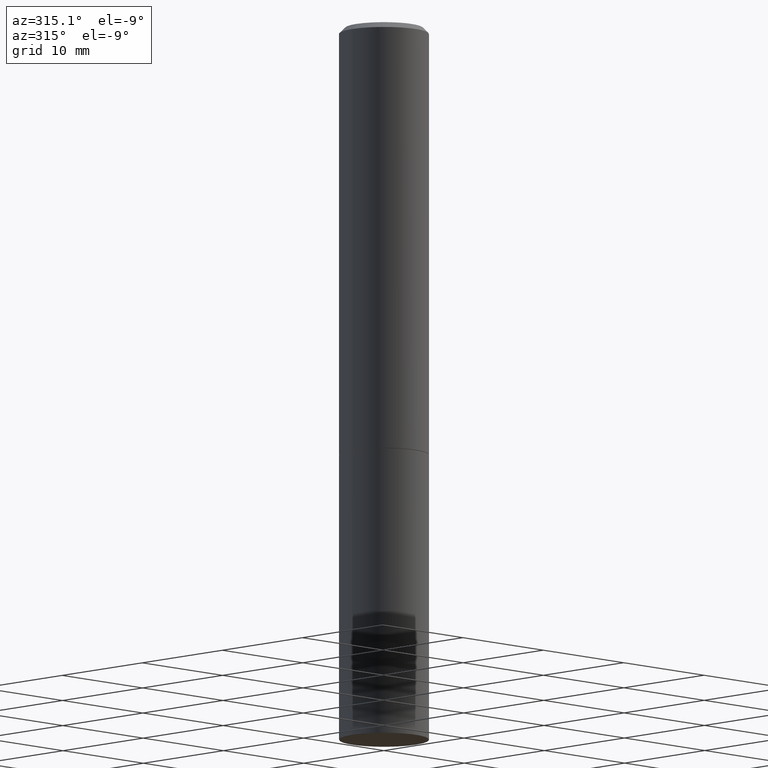
[diagram: clean part render]
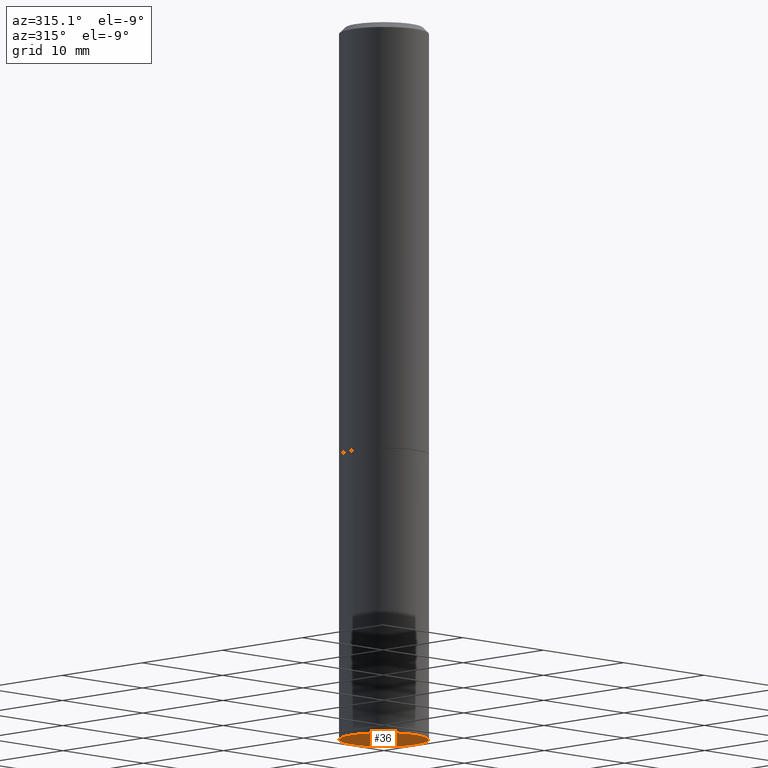
[diagram: same view with one face highlighted and labeled with its STEP entity id]
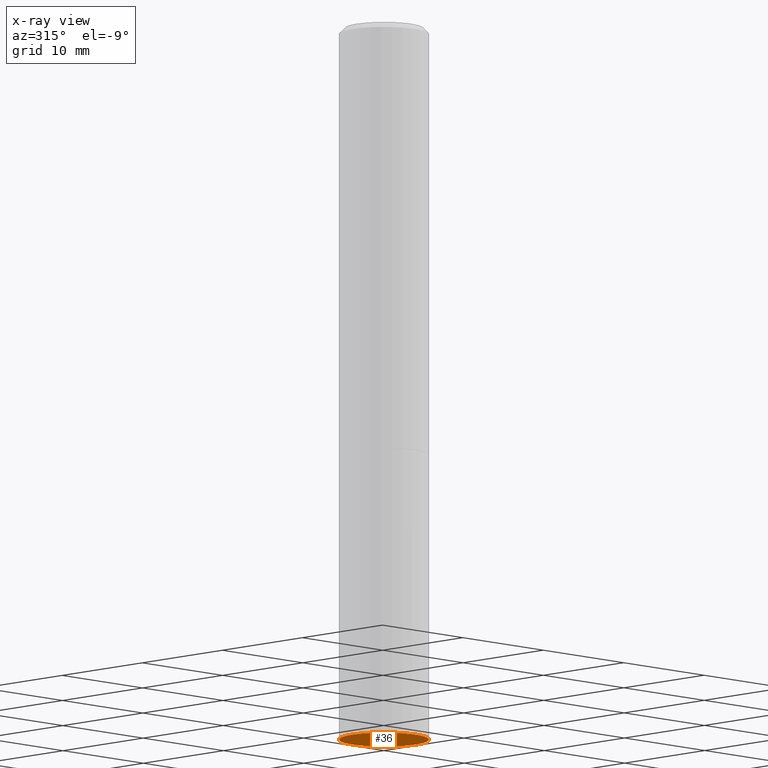
[diagram: x-ray of the same camera — body ghosted, the highlighted face saturated]
A machine part, auxiliary view. The second image highlights one B-rep face of the part: STEP entity #36.
The next image is the same camera in x-ray: the body ghosted, the highlighted face saturated — about 0% of this face is hidden behind the body in this view.
In plain terms, the highlighted planar face has unit normal (0, -0, -1).
Its self-contained STEP definition (entity closure, byte-faithful):
#36 = ADVANCED_FACE ( 'NONE', ( #103 ), #335, .T. ) ;
#53 = EDGE_CURVE ( 'NONE', #119, #280, #64, .T. ) ;
#58 = AXIS2_PLACEMENT_3D ( 'NONE', #73, #365, #75 ) ;
#64 = CIRCLE ( 'NONE', #346, 0.1562500000000000000 ) ;
#73 = CARTESIAN_POINT ( 'NONE',  ( 1.091087918388540310E-15, 0.1562499999999912570, -2.500000000000000444 ) ) ;
#75 = DIRECTION ( 'NONE',  ( -1.000000000000000000, 6.982962677686265922E-15, -4.876176775795935793E-29 ) ) ;
#86 = EDGE_CURVE ( 'NONE', #280, #119, #138, .T. ) ;
#103 = FACE_OUTER_BOUND ( 'NONE', #243, .T. ) ;
#109 = CARTESIAN_POINT ( 'NONE',  ( 0.1562500000000000000, -9.819791265496344905E-15, -2.500000000000000000 ) ) ;
#119 = VERTEX_POINT ( 'NONE', #109 ) ;
#127 = DIRECTION ( 'NONE',  ( 1.000000000000000000, -6.982962677686269077E-15, 0.000000000000000000 ) ) ;
#138 = CIRCLE ( 'NONE', #221, 0.1562500000000000000 ) ;
#167 = CARTESIAN_POINT ( 'NONE',  ( 6.113672015462842613E-29, -8.728703347107864943E-15, -2.500000000000000000 ) ) ;
#202 = DIRECTION ( 'NONE',  ( 1.000000000000000000, -6.982962677686269077E-15, 0.000000000000000000 ) ) ;
#221 = AXIS2_PLACEMENT_3D ( 'NONE', #266, #318, #127 ) ;
#227 = ORIENTED_EDGE ( 'NONE', *, *, #53, .F. ) ;
#243 = EDGE_LOOP ( 'NONE', ( #227, #363 ) ) ;
#266 = CARTESIAN_POINT ( 'NONE',  ( 6.113672015462842613E-29, -8.728703347107864943E-15, -2.500000000000000000 ) ) ;
#280 = VERTEX_POINT ( 'NONE', #291 ) ;
#283 = DIRECTION ( 'NONE',  ( -2.445468806185136597E-29, 3.491481338843145583E-15, 1.000000000000000000 ) ) ;
#291 = CARTESIAN_POINT ( 'NONE',  ( -0.1562500000000000000, -5.872739653061135414E-15, -2.500000000000000000 ) ) ;
#318 = DIRECTION ( 'NONE',  ( -2.445468806185136597E-29, 3.491481338843145583E-15, 1.000000000000000000 ) ) ;
#335 = PLANE ( 'NONE',  #58 ) ;
#346 = AXIS2_PLACEMENT_3D ( 'NONE', #167, #283, #202 ) ;
#363 = ORIENTED_EDGE ( 'NONE', *, *, #86, .F. ) ;
#365 = DIRECTION ( 'NONE',  ( 2.438088387897960049E-29, -3.491481338843145188E-15, -1.000000000000000000 ) ) ;